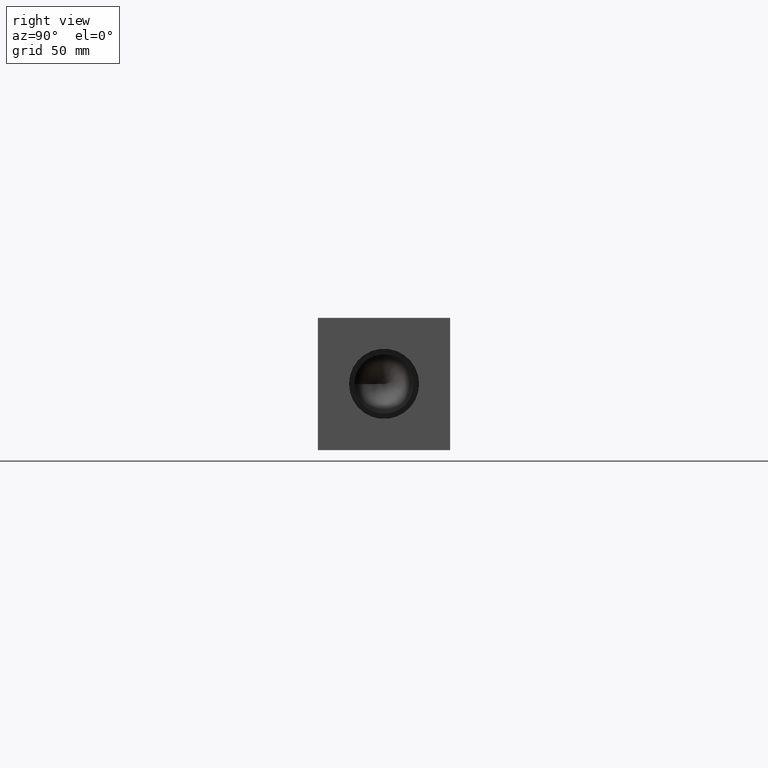
[diagram: clean part render]
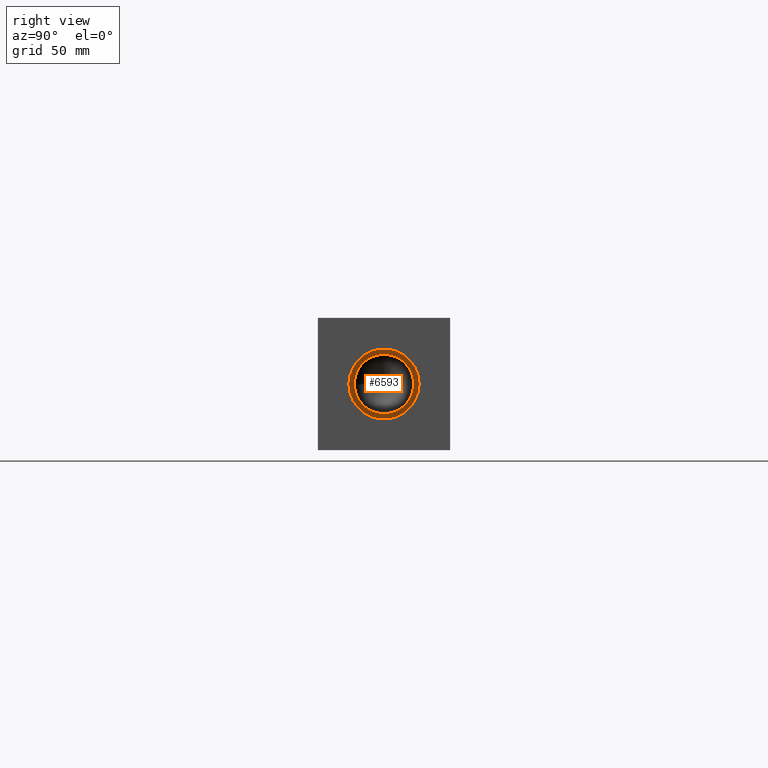
[diagram: same view with one face highlighted and labeled with its STEP entity id]
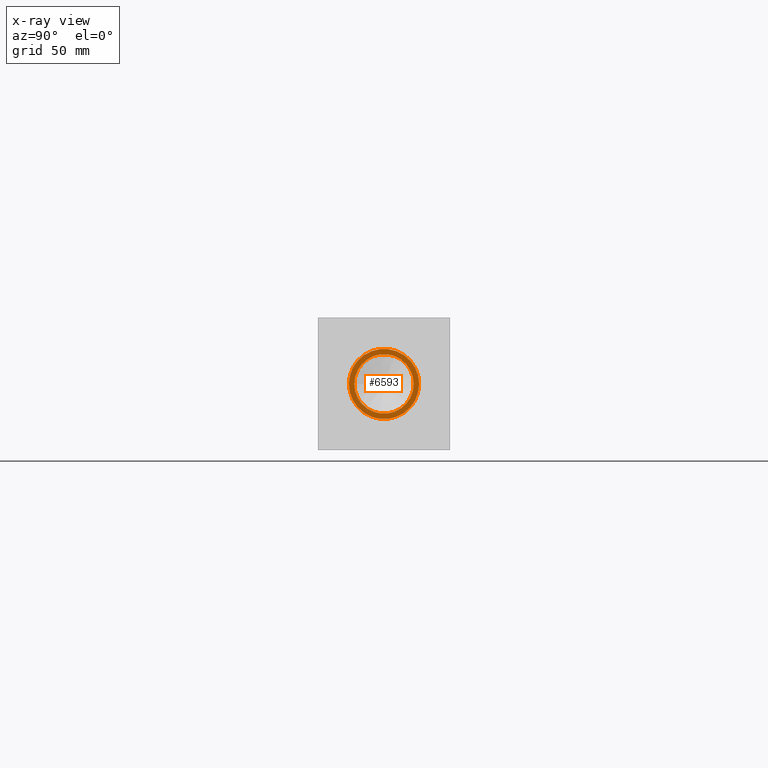
[diagram: x-ray of the same camera — body ghosted, the highlighted face saturated]
A machine part, right view. The second image highlights one B-rep face of the part: STEP entity #6593.
The next image is the same camera in x-ray: the body ghosted, the highlighted face saturated — about 0% of this face is hidden behind the body in this view.
In plain terms, the highlighted planar face has unit normal (1, 0, 0).
Its self-contained STEP definition (entity closure, byte-faithful):
#86=CIRCLE('',#6911,16.8529);
#87=CIRCLE('',#6912,16.8529);
#88=CIRCLE('',#6913,14.2875);
#136=FACE_BOUND('',#1065,.T.);
#365=PLANE('',#6910);
#693=FACE_OUTER_BOUND('',#1064,.T.);
#1064=EDGE_LOOP('',(#5847,#5848));
#1065=EDGE_LOOP('',(#5849));
#3202=VERTEX_POINT('',#11029);
#3203=VERTEX_POINT('',#11030);
#3204=VERTEX_POINT('',#11033);
#4091=EDGE_CURVE('',#3202,#3203,#86,.T.);
#4092=EDGE_CURVE('',#3203,#3202,#87,.T.);
#4093=EDGE_CURVE('',#3204,#3204,#88,.T.);
#5847=ORIENTED_EDGE('',*,*,#4091,.T.);
#5848=ORIENTED_EDGE('',*,*,#4092,.T.);
#5849=ORIENTED_EDGE('',*,*,#4093,.F.);
#6593=ADVANCED_FACE('',(#693,#136),#365,.T.);
#6910=AXIS2_PLACEMENT_3D('',#11028,#8191,#8192);
#6911=AXIS2_PLACEMENT_3D('',#11031,#8193,#8194);
#6912=AXIS2_PLACEMENT_3D('',#11032,#8195,#8196);
#6913=AXIS2_PLACEMENT_3D('',#11034,#8197,#8198);
#8191=DIRECTION('center_axis',(1.,0.,0.));
#8192=DIRECTION('ref_axis',(0.,1.,0.));
#8193=DIRECTION('center_axis',(1.,0.,0.));
#8194=DIRECTION('ref_axis',(0.,1.,0.));
#8195=DIRECTION('center_axis',(1.,0.,0.));
#8196=DIRECTION('ref_axis',(0.,1.,0.));
#8197=DIRECTION('center_axis',(1.,0.,0.));
#8198=DIRECTION('ref_axis',(0.,1.,0.));
#11028=CARTESIAN_POINT('Origin',(320.7258,31.75,31.75));
#11029=CARTESIAN_POINT('',(320.7258,48.6029,31.75));
#11030=CARTESIAN_POINT('',(320.7258,14.8971,31.75));
#11031=CARTESIAN_POINT('Origin',(320.7258,31.75,31.75));
#11032=CARTESIAN_POINT('Origin',(320.7258,31.75,31.75));
#11033=CARTESIAN_POINT('',(320.7258,17.4625,31.75));
#11034=CARTESIAN_POINT('Origin',(320.7258,31.75,31.75));